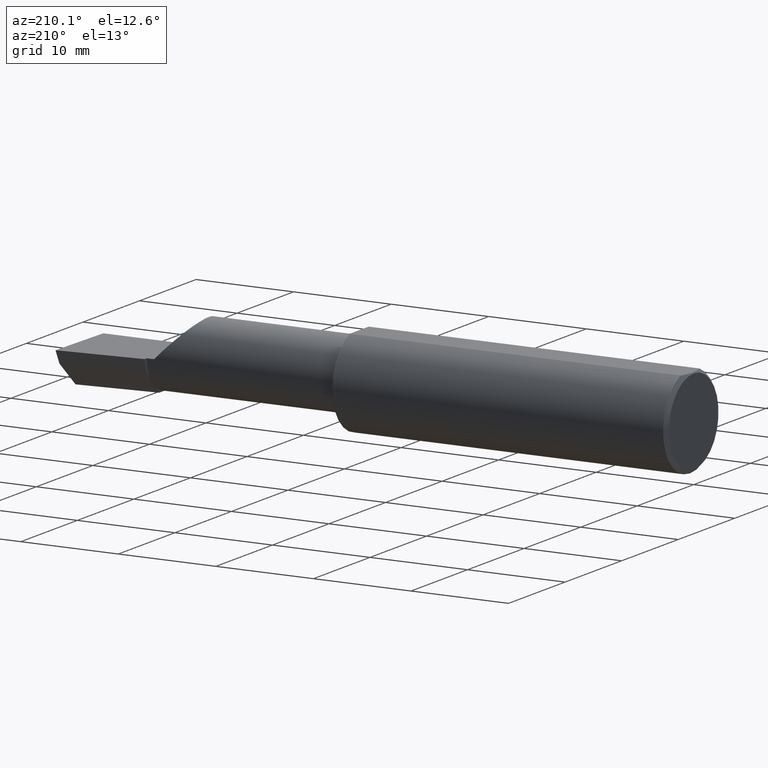
[diagram: clean part render]
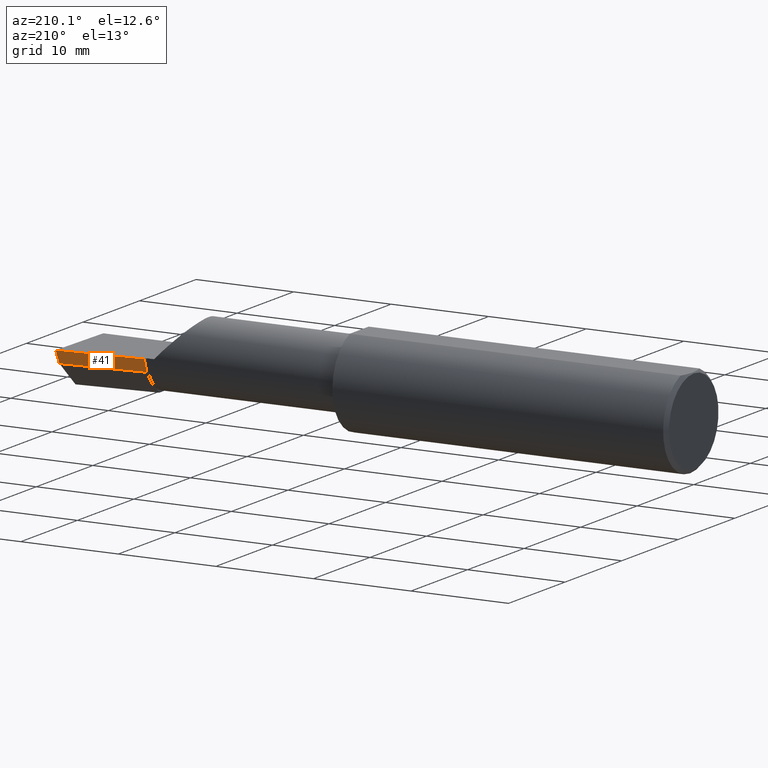
[diagram: same view with one face highlighted and labeled with its STEP entity id]
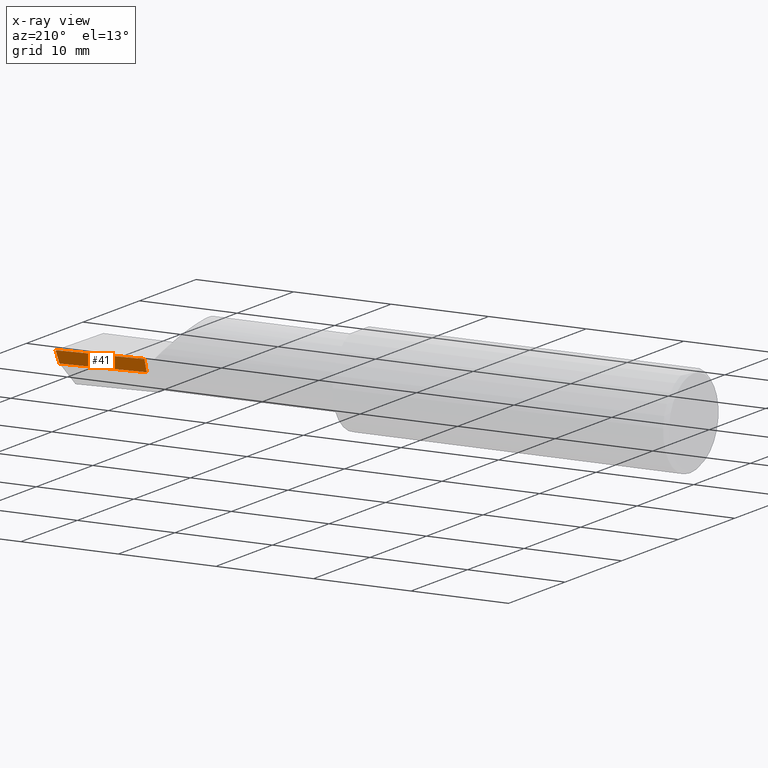
[diagram: x-ray of the same camera — body ghosted, the highlighted face saturated]
A machine part, auxiliary view. The second image highlights one B-rep face of the part: STEP entity #41.
The next image is the same camera in x-ray: the body ghosted, the highlighted face saturated — about 0% of this face is hidden behind the body in this view.
In plain terms, the highlighted planar face has unit normal (-0.0917, 0.9519, -0.2924).
Its self-contained STEP definition (entity closure, byte-faithful):
#12 = VECTOR ( 'NONE', #104, 39.37007874015748854 ) ;
#41 = ADVANCED_FACE ( 'NONE', ( #332 ), #567, .T. ) ;
#48 = DIRECTION ( 'NONE',  ( -0.09165774897393341725, 0.9519021185660614393, -0.2923717047227303856 ) ) ;
#54 = CARTESIAN_POINT ( 'NONE',  ( 2.160000000000000142, 0.09791172361284175563, 3.308097179827818849E-16 ) ) ;
#58 = VERTEX_POINT ( 'NONE', #526 ) ;
#65 = ORIENTED_EDGE ( 'NONE', *, *, #524, .F. ) ;
#76 = VERTEX_POINT ( 'NONE', #435 ) ;
#84 = DIRECTION ( 'NONE',  ( -0.9953961983671800740, -0.09584575252021031166, 0.000000000000000000 ) ) ;
#95 = CARTESIAN_POINT ( 'NONE',  ( 2.509953961983671711, 0.1316084575252021438, -6.829619984160658046E-17 ) ) ;
#104 = DIRECTION ( 'NONE',  ( 0.1240019227988267692, 0.3022330132596590113, 0.9451342385281470415 ) ) ;
#138 = DIRECTION ( 'NONE',  ( 2.005228508682076666E-18, -0.2936076258024060692, -0.9559260233253795702 ) ) ;
#154 = CARTESIAN_POINT ( 'NONE',  ( 2.160000000000000142, 0.09456875743780475407, -0.01088401009027229610 ) ) ;
#164 = AXIS2_PLACEMENT_3D ( 'NONE', #95, #48, #235 ) ;
#205 = LINE ( 'NONE', #571, #268 ) ;
#214 = ORIENTED_EDGE ( 'NONE', *, *, #232, .F. ) ;
#232 = EDGE_CURVE ( 'NONE', #498, #58, #544, .T. ) ;
#235 = DIRECTION ( 'NONE',  ( 0.000000000000000000, 0.2936076258024060692, 0.9559260233253795702 ) ) ;
#243 = ORIENTED_EDGE ( 'NONE', *, *, #507, .T. ) ;
#262 = EDGE_LOOP ( 'NONE', ( #214, #403, #65, #243 ) ) ;
#268 = VECTOR ( 'NONE', #345, 39.37007874015748143 ) ;
#303 = VERTEX_POINT ( 'NONE', #54 ) ;
#332 = FACE_OUTER_BOUND ( 'NONE', #262, .T. ) ;
#345 = DIRECTION ( 'NONE',  ( 0.9953961983671787417, 0.09584575252022459191, -1.028972571603813720E-16 ) ) ;
#347 = EDGE_CURVE ( 'NONE', #498, #76, #559, .T. ) ;
#353 = CARTESIAN_POINT ( 'NONE',  ( 2.500188977433779769, 0.1311105994646662165, 0.001440373173041280741 ) ) ;
#403 = ORIENTED_EDGE ( 'NONE', *, *, #347, .T. ) ;
#420 = CARTESIAN_POINT ( 'NONE',  ( 2.511419111345317923, 0.1163922996227946260, -0.04999999999999999584 ) ) ;
#430 = VECTOR ( 'NONE', #84, 39.37007874015748854 ) ;
#435 = CARTESIAN_POINT ( 'NONE',  ( 2.160000000000000142, 0.08255448787293399870, -0.05000000000000000278 ) ) ;
#469 = LINE ( 'NONE', #154, #529 ) ;
#498 = VERTEX_POINT ( 'NONE', #587 ) ;
#507 = EDGE_CURVE ( 'NONE', #303, #58, #205, .T. ) ;
#524 = EDGE_CURVE ( 'NONE', #303, #76, #469, .T. ) ;
#526 = CARTESIAN_POINT ( 'NONE',  ( 2.499999999999978684, 0.1306500000000238582, 8.403660643088248419E-14 ) ) ;
#529 = VECTOR ( 'NONE', #138, 39.37007874015748854 ) ;
#544 = LINE ( 'NONE', #353, #12 ) ;
#559 = LINE ( 'NONE', #420, #430 ) ;
#567 = PLANE ( 'NONE',  #164 ) ;
#571 = CARTESIAN_POINT ( 'NONE',  ( 0.5470260790800316464, -0.05740000000000000657, 2.701812985571356346E-16 ) ) ;
#587 = CARTESIAN_POINT ( 'NONE',  ( 2.493439983562941720, 0.1146611065212079089, -0.04999999999999999584 ) ) ;